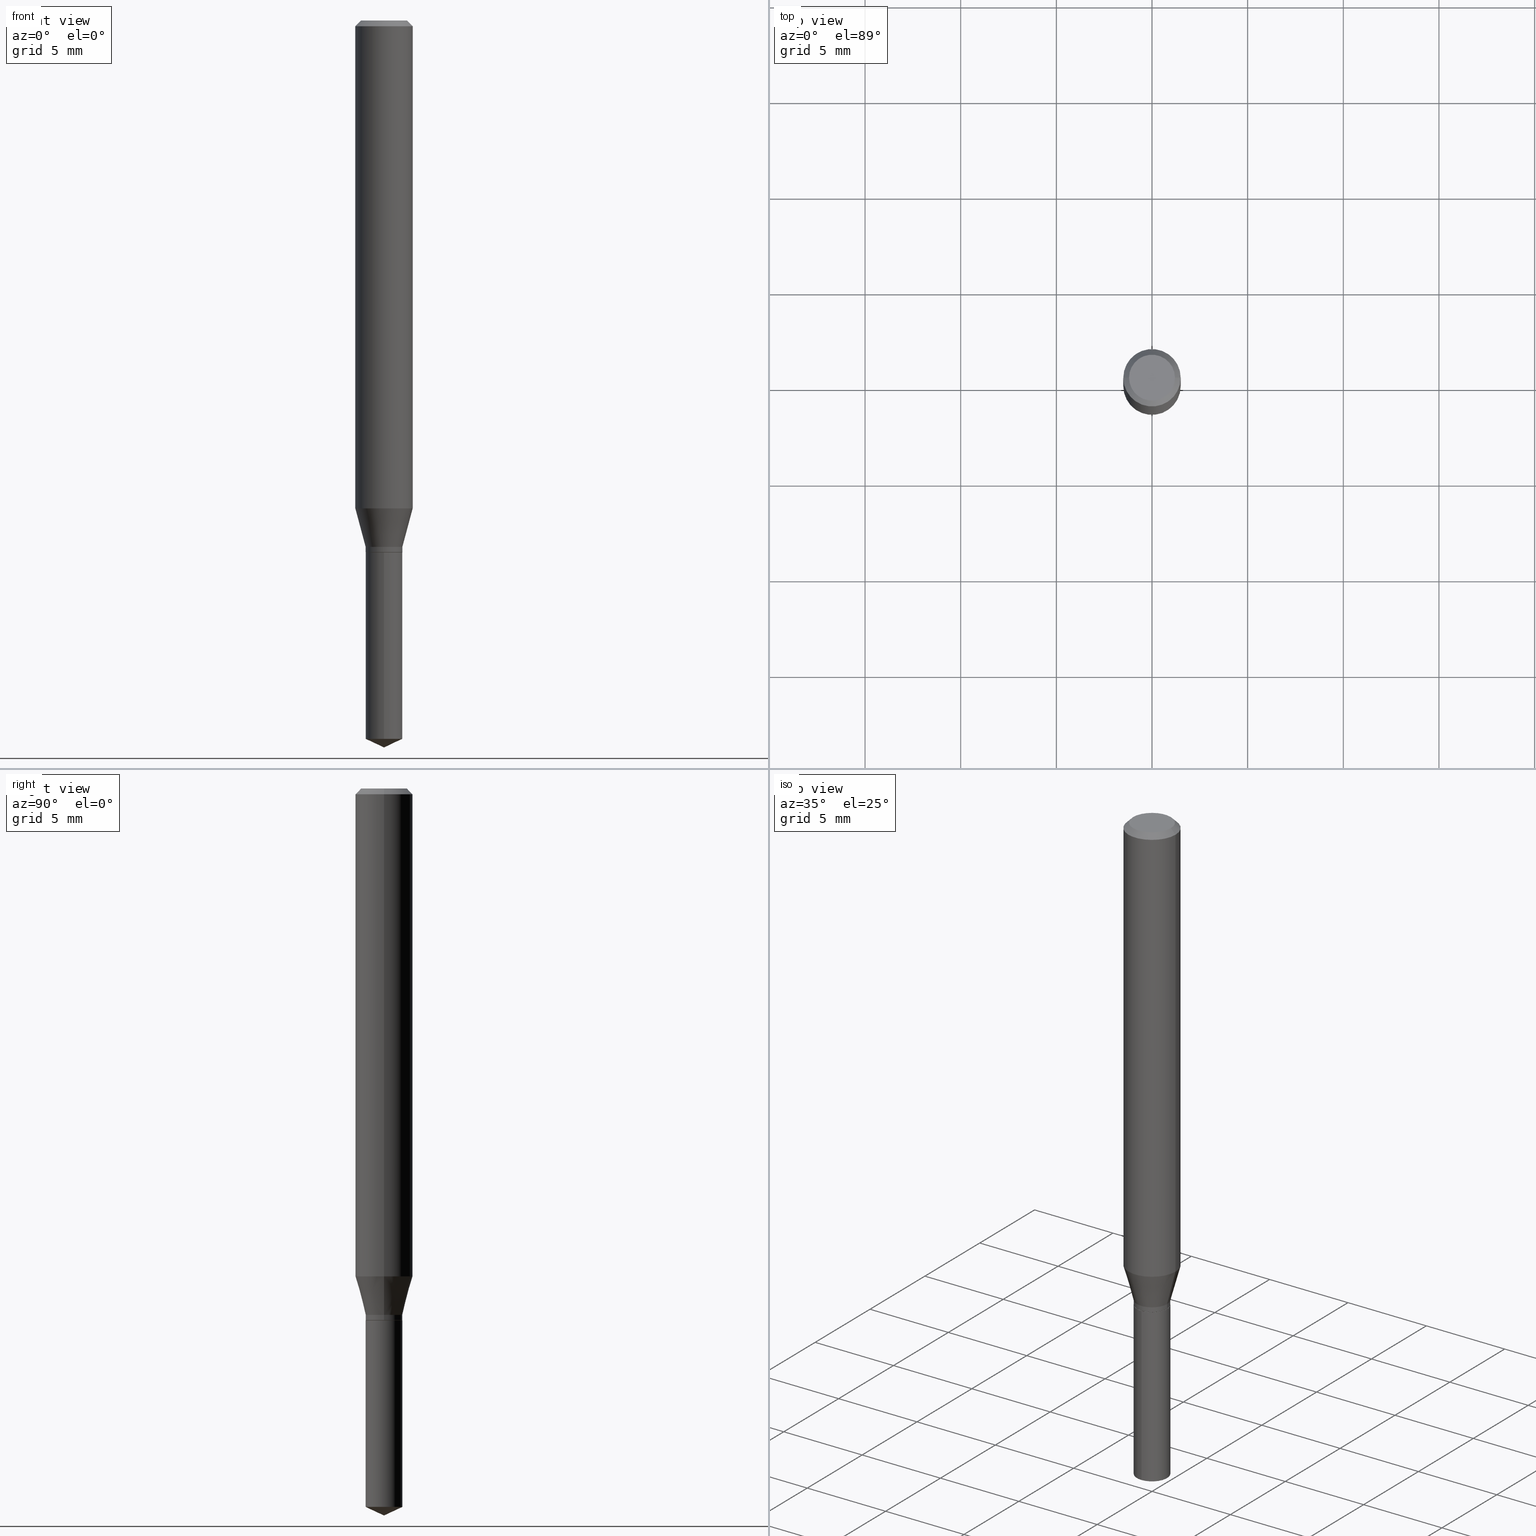
[diagram: canonical four-view strip — front | top / right | iso, engineering-drawing reading convention]
A machine part, canonical four-view strip (front | top / right | iso — engineering-drawing reading convention). The complete STEP part file that produces these views, byte-faithful:
ISO-10303-21;
HEADER;
FILE_DESCRIPTION (( 'STEP AP203' ),
    '1' );
FILE_NAME ('07935.STEP',
    '2024-04-24T06:37:50',
    ( '' ),
    ( '' ),
    'SwSTEP 2.0',
    'SolidWorks 2023',
    '' );
FILE_SCHEMA (( 'CONFIG_CONTROL_DESIGN' ));
ENDSEC;

DATA;
#1 =( GEOMETRIC_REPRESENTATION_CONTEXT ( 3 ) GLOBAL_UNCERTAINTY_ASSIGNED_CONTEXT ( ( #140 ) ) GLOBAL_UNIT_ASSIGNED_CONTEXT ( ( #318, #479, #279 ) ) REPRESENTATION_CONTEXT ( 'NONE', 'WORKASPACE' ) );
#2 = COORDINATED_UNIVERSAL_TIME_OFFSET ( 5, 0, .BEHIND. ) ;
#3 = CARTESIAN_POINT ( 'NONE',  ( -2.639559892165140833E-16, -0.03780000000000381666, -1.094499999999999806 ) ) ;
#4 = ORIENTED_EDGE ( 'NONE', *, *, #115, .F. ) ;
#5 = PERSON_AND_ORGANIZATION ( #147, #65 ) ;
#6 = CARTESIAN_POINT ( 'NONE',  ( 2.676565608369631794E-29, -3.821426325363822773E-15, -1.094499999999999806 ) ) ;
#7 = LINE ( 'NONE', #291, #465 ) ;
#8 = ORIENTED_EDGE ( 'NONE', *, *, #96, .T. ) ;
#9 = ADVANCED_FACE ( 'NONE', ( #446 ), #247, .T. ) ;
#10 = DIRECTION ( 'NONE',  ( -2.445458899330790108E-29, 3.491495526022433205E-15, 1.000000000000000000 ) ) ;
#11 = CONICAL_SURFACE ( 'NONE', #212, 84.42940631927459094, 1.134464013796317117 ) ;
#12 = DIRECTION ( 'NONE',  ( -6.982962677686265922E-15, -1.000000000000000000, 0.000000000000000000 ) ) ;
#13 = CONICAL_SURFACE ( 'NONE', #95, 0.03729999999999999982, 0.7853981633974141952 ) ;
#14 = DIRECTION ( 'NONE',  ( 0.7071067811865453523, -7.319954787623248157E-15, -0.7071067811865496822 ) ) ;
#15 = CALENDAR_DATE ( 2024, 24, 4 ) ;
#16 = DIRECTION ( 'NONE',  ( 1.000000000000000000, -6.982962677686270655E-15, 0.000000000000000000 ) ) ;
#17 = PLANE ( 'NONE',  #70 ) ;
#18 = ORIENTED_EDGE ( 'NONE', *, *, #386, .F. ) ;
#19 = APPROVAL ( #188, 'UNSPECIFIED' ) ;
#20 = PERSON_AND_ORGANIZATION_ROLE ( 'design_supplier' ) ;
#21 = DIRECTION ( 'NONE',  ( 2.445458899330789267E-29, -3.491495526022433599E-15, -1.000000000000000000 ) ) ;
#22 = FACE_OUTER_BOUND ( 'NONE', #271, .T. ) ;
#23 = CIRCLE ( 'NONE', #127, 0.05904999999999999832 ) ;
#24 = AXIS2_PLACEMENT_3D ( 'NONE', #266, #10, #83 ) ;
#25 = ORIENTED_EDGE ( 'NONE', *, *, #473, .T. ) ;
#26 = EDGE_LOOP ( 'NONE', ( #248, #136, #359, #379 ) ) ;
#27 = PRODUCT_RELATED_PRODUCT_CATEGORY ( 'detail', '', ( #249 ) ) ;
#28 = LENGTH_MEASURE_WITH_UNIT ( LENGTH_MEASURE( 0.02539999999999999897 ), #432 );
#29 = CYLINDRICAL_SURFACE ( 'NONE', #275, 0.05905000000000006077 ) ;
#30 = CC_DESIGN_APPROVAL ( #365, ( #459 ) ) ;
#31 = EDGE_LOOP ( 'NONE', ( #348, #101, #270, #112 ) ) ;
#32 = ORIENTED_EDGE ( 'NONE', *, *, #439, .T. ) ;
#33 = ORIENTED_EDGE ( 'NONE', *, *, #41, .T. ) ;
#34 = EDGE_CURVE ( 'NONE', #182, #287, #217, .T. ) ;
#35 = VECTOR ( 'NONE', #261, 39.37007874015748143 ) ;
#36 = VECTOR ( 'NONE', #72, 39.37007874015748854 ) ;
#37 = CARTESIAN_POINT ( 'NONE',  ( 0.000000000000000000, 0.000000000000000000, 0.000000000000000000 ) ) ;
#38 = CONICAL_SURFACE ( 'NONE', #173, 0.03729999999999999982, 0.7853981633974141952 ) ;
#39 = CARTESIAN_POINT ( 'NONE',  ( 0.000000000000000000, 0.000000000000000000, 0.000000000000000000 ) ) ;
#40 = CYLINDRICAL_SURFACE ( 'NONE', #103, 0.03780000000000000027 ) ;
#41 = EDGE_CURVE ( 'NONE', #340, #313, #207, .T. ) ;
#42 = VERTEX_POINT ( 'NONE', #135 ) ;
#43 = AXIS2_PLACEMENT_3D ( 'NONE', #86, #369, #47 ) ;
#44 = DIRECTION ( 'NONE',  ( -2.445458899330790108E-29, 3.491495526022433599E-15, 1.000000000000000000 ) ) ;
#45 = VECTOR ( 'NONE', #14, 39.37007874015748143 ) ;
#46 = DATE_TIME_ROLE ( 'creation_date' ) ;
#47 = DIRECTION ( 'NONE',  ( -6.982962677686265922E-15, -1.000000000000000000, 0.000000000000000000 ) ) ;
#48 = ORIENTED_EDGE ( 'NONE', *, *, #124, .T. ) ;
#49 = EDGE_CURVE ( 'NONE', #331, #179, #265, .T. ) ;
#50 = FACE_OUTER_BOUND ( 'NONE', #281, .T. ) ;
#51 = DIRECTION ( 'NONE',  ( 1.000000000000000000, -6.982962677686266711E-15, 0.000000000000000000 ) ) ;
#52 = EDGE_LOOP ( 'NONE', ( #18, #82, #33, #104 ) ) ;
#53 = DIRECTION ( 'NONE',  ( -2.445468806185136597E-29, 3.491481338843145583E-15, 1.000000000000000000 ) ) ;
#54 = CARTESIAN_POINT ( 'NONE',  ( -0.03780000000000000027, -3.532241431347330370E-15, -1.083199999999999941 ) ) ;
#55 = LINE ( 'NONE', #423, #158 ) ;
#56 = ADVANCED_FACE ( 'NONE', ( #244 ), #214, .T. ) ;
#57 = CARTESIAN_POINT ( 'NONE',  ( 3.658672935554494692E-29, -5.223595400746700193E-15, -1.496099999999999985 ) ) ;
#58 = DIRECTION ( 'NONE',  ( -6.982962677686265922E-15, -1.000000000000000000, 3.613555547174951347E-15 ) ) ;
#59 = LINE ( 'NONE', #151, #45 ) ;
#60 = CIRCLE ( 'NONE', #455, 0.05905000000000011628 ) ;
#61 = CC_DESIGN_PERSON_AND_ORGANIZATION_ASSIGNMENT ( #324, #282, ( #249 ) ) ;
#62 = ORIENTED_EDGE ( 'NONE', *, *, #41, .F. ) ;
#63 = ORIENTED_EDGE ( 'NONE', *, *, #467, .T. ) ;
#64 = EDGE_CURVE ( 'NONE', #287, #313, #487, .T. ) ;
#65 = ORGANIZATION ( 'UNSPECIFIED', 'UNSPECIFIED', '' ) ;
#66 = CARTESIAN_POINT ( 'NONE',  ( -0.03780000000000000027, -3.513387432117577343E-15, -1.083199999999999941 ) ) ;
#67 = ORIENTED_EDGE ( 'NONE', *, *, #473, .F. ) ;
#68 = APPLICATION_CONTEXT ( 'configuration controlled 3d designs of mechanical parts and assemblies' ) ;
#69 = FACE_OUTER_BOUND ( 'NONE', #100, .T. ) ;
#70 = AXIS2_PLACEMENT_3D ( 'NONE', #307, #463, #126 ) ;
#71 = AXIS2_PLACEMENT_3D ( 'NONE', #260, #84, #381 ) ;
#72 = DIRECTION ( 'NONE',  ( -0.2588190451025211836, 5.211531920934547886E-15, 0.9659258262890679791 ) ) ;
#73 = PERSON_AND_ORGANIZATION ( #147, #65 ) ;
#74 = CARTESIAN_POINT ( 'NONE',  ( 0.05904999999999999832, -4.535783407291118600E-16, -0.01181000000000007044 ) ) ;
#75 = DIRECTION ( 'NONE',  ( -6.982962677686267499E-15, -1.000000000000000000, 3.520397390770443220E-15 ) ) ;
#76 = DIRECTION ( 'NONE',  ( -2.445468806185136877E-29, 3.491481338843145188E-15, 1.000000000000000000 ) ) ;
#77 = CIRCLE ( 'NONE', #238, 0.03729999999999999982 ) ;
#78 = EDGE_CURVE ( 'NONE', #332, #400, #121, .T. ) ;
#79 = LINE ( 'NONE', #255, #200 ) ;
#80 = FACE_OUTER_BOUND ( 'NONE', #52, .T. ) ;
#81 = DIMENSIONAL_EXPONENTS ( 1.000000000000000000, 0.000000000000000000, 0.000000000000000000, 0.000000000000000000, 0.000000000000000000, 0.000000000000000000, 0.000000000000000000 ) ;
#82 = ORIENTED_EDGE ( 'NONE', *, *, #227, .F. ) ;
#83 = DIRECTION ( 'NONE',  ( -6.982962677686265922E-15, -1.000000000000000000, 3.613555547174951347E-15 ) ) ;
#84 = DIRECTION ( 'NONE',  ( -2.445468806185136597E-29, 3.491481338843145583E-15, 1.000000000000000000 ) ) ;
#85 = CARTESIAN_POINT ( 'NONE',  ( -0.04724000000000000421, 3.504923541997677355E-16, -3.380025165670481712E-19 ) ) ;
#86 = CARTESIAN_POINT ( 'NONE',  ( 3.615557193509842490E-29, -5.162068328951341351E-15, -1.478473570521741109 ) ) ;
#87 = EDGE_LOOP ( 'NONE', ( #485, #150, #464, #123 ) ) ;
#88 = PERSON_AND_ORGANIZATION ( #147, #65 ) ;
#89 = DIRECTION ( 'NONE',  ( 1.000000000000000000, -6.982962677686270655E-15, 0.000000000000000000 ) ) ;
#90 = LOCAL_TIME ( 2, 37, 50.00000000000000000, #367 ) ;
#91 = CARTESIAN_POINT ( 'NONE',  ( 2.685851541173539625E-16, 0.03779999999999483773, -1.478473570521741109 ) ) ;
#92 = PERSON_AND_ORGANIZATION ( #147, #65 ) ;
#93 = CARTESIAN_POINT ( 'NONE',  ( 0.03729999999999999982, -4.081890833241520572E-15, -1.094499999999999806 ) ) ;
#94 = ORIENTED_EDGE ( 'NONE', *, *, #443, .T. ) ;
#95 = AXIS2_PLACEMENT_3D ( 'NONE', #299, #377, #16 ) ;
#96 = EDGE_CURVE ( 'NONE', #204, #182, #167, .T. ) ;
#97 = CIRCLE ( 'NONE', #43, 0.03780000000000000027 ) ;
#98 = AXIS2_PLACEMENT_3D ( 'NONE', #116, #253, #404 ) ;
#99 = ORIENTED_EDGE ( 'NONE', *, *, #139, .T. ) ;
#100 = EDGE_LOOP ( 'NONE', ( #205, #114, #99, #257 ) ) ;
#101 = ORIENTED_EDGE ( 'NONE', *, *, #373, .T. ) ;
#102 = CC_DESIGN_DATE_AND_TIME_ASSIGNMENT ( #222, #46, ( #459 ) ) ;
#103 = AXIS2_PLACEMENT_3D ( 'NONE', #327, #451, #152 ) ;
#104 = ORIENTED_EDGE ( 'NONE', *, *, #133, .T. ) ;
#105 = CIRCLE ( 'NONE', #454, 0.03780000000000000027 ) ;
#106 = DIRECTION ( 'NONE',  ( 1.000000000000000000, -6.982962677686271444E-15, 0.000000000000000000 ) ) ;
#107 = APPROVAL_STATUS ( 'not_yet_approved' ) ;
#108 = CC_DESIGN_PERSON_AND_ORGANIZATION_ASSIGNMENT ( #389, #20, ( #428 ) ) ;
#109 = APPROVAL_STATUS ( 'not_yet_approved' ) ;
#110 = CONICAL_SURFACE ( 'NONE', #236, 0.03780000000000000027, 0.2617993877991499074 ) ;
#111 = DIRECTION ( 'NONE',  ( 1.000000000000000000, -6.982962677686266711E-15, 0.000000000000000000 ) ) ;
#112 = ORIENTED_EDGE ( 'NONE', *, *, #216, .F. ) ;
#113 = FACE_OUTER_BOUND ( 'NONE', #353, .T. ) ;
#114 = ORIENTED_EDGE ( 'NONE', *, *, #115, .T. ) ;
#115 = EDGE_CURVE ( 'NONE', #182, #204, #172, .T. ) ;
#116 = CARTESIAN_POINT ( 'NONE',  ( 2.676565608369631794E-29, -3.821426325363822773E-15, -1.094499999999999806 ) ) ;
#117 = ORIENTED_EDGE ( 'NONE', *, *, #234, .T. ) ;
#118 = PLANE ( 'NONE',  #352 ) ;
#119 = VECTOR ( 'NONE', #130, 39.37007874015748143 ) ;
#120 = CARTESIAN_POINT ( 'NONE',  ( -2.639559892165140833E-16, -0.03780000000000381666, -1.094499999999999806 ) ) ;
#121 = LINE ( 'NONE', #3, #383 ) ;
#122 = LINE ( 'NONE', #460, #342 ) ;
#123 = ORIENTED_EDGE ( 'NONE', *, *, #284, .F. ) ;
#124 = EDGE_CURVE ( 'NONE', #263, #332, #97, .T. ) ;
#125 = DIRECTION ( 'NONE',  ( 0.7071067811865232589, -2.468850131082003836E-15, 0.7071067811865715536 ) ) ;
#126 = DIRECTION ( 'NONE',  ( -1.000000000000000000, 6.982962677686265922E-15, -4.876176775795935793E-29 ) ) ;
#127 = AXIS2_PLACEMENT_3D ( 'NONE', #378, #286, #51 ) ;
#128 = AXIS2_PLACEMENT_3D ( 'NONE', #341, #162, #304 ) ;
#129 = CARTESIAN_POINT ( 'NONE',  ( -0.03729999999999999982, -3.553744657751194204E-15, -1.094499999999999806 ) ) ;
#130 = DIRECTION ( 'NONE',  ( -2.445468806185136877E-29, 3.491481338843145188E-15, 1.000000000000000000 ) ) ;
#131 = VERTEX_POINT ( 'NONE', #149 ) ;
#132 = ADVANCED_FACE ( 'NONE', ( #80 ), #156, .T. ) ;
#133 = EDGE_CURVE ( 'NONE', #313, #302, #23, .T. ) ;
#134 = PRODUCT_DEFINITION_SHAPE ( 'NONE', 'NONE',  #459 ) ;
#135 = CARTESIAN_POINT ( 'NONE',  ( 0.04724000000000000421, -3.852183633974369345E-16, -3.380025165621689721E-19 ) ) ;
#136 = ORIENTED_EDGE ( 'NONE', *, *, #431, .T. ) ;
#137 = DATE_TIME_ROLE ( 'classification_date' ) ;
#138 = ORIENTED_EDGE ( 'NONE', *, *, #354, .F. ) ;
#139 = EDGE_CURVE ( 'NONE', #204, #283, #7, .T. ) ;
#140 = UNCERTAINTY_MEASURE_WITH_UNIT (LENGTH_MEASURE( 1.000000000000000082E-05 ), #318, 'distance_accuracy_value', 'NONE');
#141 = APPROVAL_ROLE ( '' ) ;
#142 = DIRECTION ( 'NONE',  ( -0.7071067811865453523, 2.468850131082234184E-15, -0.7071067811865496822 ) ) ;
#143 = CLOSED_SHELL ( 'NONE', ( #406, #178, #480, #347, #9, #161, #326, #181, #132, #242, #264, #333 ) ) ;
#144 = MANIFOLD_SOLID_BREP ( 'Body-Move/Copy2[2]', #143 ) ;
#145 = LOCAL_TIME ( 2, 37, 50.00000000000000000, #215 ) ;
#146 = DIRECTION ( 'NONE',  ( 2.445468806185136597E-29, -3.491481338843145583E-15, -1.000000000000000000 ) ) ;
#147 = PERSON ( 'UNSPECIFIED', 'UNSPECIFIED', 'UNSPECIFIED', ('UNSPECIFIED'), ('UNSPECIFIED'), ('UNSPECIFIED') ) ;
#148 = CARTESIAN_POINT ( 'NONE',  ( 2.454991266908324597E-29, -3.505076889042267956E-15, -1.003893920339161028 ) ) ;
#149 = CARTESIAN_POINT ( 'NONE',  ( 3.658651059288794515E-29, -5.223626456482161457E-15, -1.496099999999999985 ) ) ;
#150 = ORIENTED_EDGE ( 'NONE', *, *, #64, .T. ) ;
#151 = CARTESIAN_POINT ( 'NONE',  ( 0.05904999999999999832, -4.463468013801466955E-16, -0.01181000000000007044 ) ) ;
#152 = DIRECTION ( 'NONE',  ( 1.000000000000000000, -6.982962677686265922E-15, 4.876176775795935793E-29 ) ) ;
#153 = EDGE_LOOP ( 'NONE', ( #382, #32 ) ) ;
#154 = AXIS2_PLACEMENT_3D ( 'NONE', #390, #235, #338 ) ;
#155 = FACE_OUTER_BOUND ( 'NONE', #447, .T. ) ;
#156 = CONICAL_SURFACE ( 'NONE', #199, 0.05904999999999999832, 0.7853981633974452814 ) ;
#157 = CARTESIAN_POINT ( 'NONE',  ( 2.888098660104663766E-31, -4.123439461173779647E-17, -0.01181000000000007044 ) ) ;
#158 = VECTOR ( 'NONE', #457, 39.37007874015748143 ) ;
#159 = ORIENTED_EDGE ( 'NONE', *, *, #216, .T. ) ;
#160 = CARTESIAN_POINT ( 'NONE',  ( -2.639559892165046662E-16, -0.03780000000000515586, -1.478473570521741109 ) ) ;
#161 = ADVANCED_FACE ( 'NONE', ( #191 ), #40, .T. ) ;
#162 = DIRECTION ( 'NONE',  ( -2.438088387897960049E-29, 3.491481338843145188E-15, 1.000000000000000000 ) ) ;
#163 = DIRECTION ( 'NONE',  ( -2.445458899330790108E-29, 3.491495526022433205E-15, 1.000000000000000000 ) ) ;
#164 = DIRECTION ( 'NONE',  ( -2.445468806185136597E-29, 3.491481338843145583E-15, 1.000000000000000000 ) ) ;
#165 = LINE ( 'NONE', #223, #35 ) ;
#166 = DIRECTION ( 'NONE',  ( -2.445458899330790108E-29, 3.491495526022433205E-15, 1.000000000000000000 ) ) ;
#167 = CIRCLE ( 'NONE', #183, 0.03780000000000000027 ) ;
#168 = VECTOR ( 'NONE', #329, 39.37007874015748854 ) ;
#169 = EDGE_CURVE ( 'NONE', #332, #263, #308, .T. ) ;
#170 = DESIGN_CONTEXT ( 'detailed design', #68, 'design' ) ;
#171 = ORIENTED_EDGE ( 'NONE', *, *, #169, .F. ) ;
#172 = CIRCLE ( 'NONE', #221, 0.03780000000000000027 ) ;
#173 = AXIS2_PLACEMENT_3D ( 'NONE', #420, #228, #89 ) ;
#174 = SHAPE_DEFINITION_REPRESENTATION ( #134, #350 ) ;
#175 = ORIENTED_EDGE ( 'NONE', *, *, #139, .F. ) ;
#176 = ORIENTED_EDGE ( 'NONE', *, *, #294, .T. ) ;
#177 = CIRCLE ( 'NONE', #154, 0.04724000000000000421 ) ;
#178 = ADVANCED_FACE ( 'NONE', ( #375 ), #298, .T. ) ;
#179 = VERTEX_POINT ( 'NONE', #189 ) ;
#180 = DIRECTION ( 'NONE',  ( -6.982962677686265922E-15, -1.000000000000000000, 3.613555547174951347E-15 ) ) ;
#181 = ADVANCED_FACE ( 'NONE', ( #458 ), #336, .T. ) ;
#182 = VERTEX_POINT ( 'NONE', #54 ) ;
#183 = AXIS2_PLACEMENT_3D ( 'NONE', #262, #421, #254 ) ;
#184 = DIRECTION ( 'NONE',  ( -2.445468806185136877E-29, 3.491481338843145188E-15, 1.000000000000000000 ) ) ;
#185 = CARTESIAN_POINT ( 'NONE',  ( 0.03780000000000000027, -4.045928575451436021E-15, -1.083199999999999941 ) ) ;
#186 = ORIENTED_EDGE ( 'NONE', *, *, #373, .F. ) ;
#187 = APPROVAL_PERSON_ORGANIZATION ( #5, #19, #334 ) ;
#188 = APPROVAL_STATUS ( 'not_yet_approved' ) ;
#189 = CARTESIAN_POINT ( 'NONE',  ( -0.03780000000000000027, -3.532241431347330370E-15, -1.093999999999999861 ) ) ;
#190 = DIRECTION ( 'NONE',  ( -2.445468806185136597E-29, 3.491481338843145583E-15, 1.000000000000000000 ) ) ;
#191 = FACE_OUTER_BOUND ( 'NONE', #425, .T. ) ;
#192 = CC_DESIGN_PERSON_AND_ORGANIZATION_ASSIGNMENT ( #92, #435, ( #358 ) ) ;
#193 = CARTESIAN_POINT ( 'NONE',  ( 2.676565608369631794E-29, -3.821426325363822773E-15, -1.094499999999999806 ) ) ;
#194 = DIRECTION ( 'NONE',  ( 0.2588190451025211836, 1.565188264969622559E-15, 0.9659258262890679791 ) ) ;
#195 = CIRCLE ( 'NONE', #385, 0.05904999999999999832 ) ;
#196 = DIRECTION ( 'NONE',  ( -2.445468806185136597E-29, 3.491481338843145583E-15, 1.000000000000000000 ) ) ;
#197 = DIRECTION ( 'NONE',  ( 6.439704144417032720E-15, 0.9063077870366527122, 0.4226182617406937236 ) ) ;
#198 = ADVANCED_FACE ( 'NONE', ( #113 ), #11, .T. ) ;
#199 = AXIS2_PLACEMENT_3D ( 'NONE', #489, #229, #296 ) ;
#200 = VECTOR ( 'NONE', #269, 39.37007874015748143 ) ;
#201 = CC_DESIGN_APPROVAL ( #203, ( #358 ) ) ;
#202 = ORIENTED_EDGE ( 'NONE', *, *, #303, .F. ) ;
#203 = APPROVAL ( #107, 'UNSPECIFIED' ) ;
#204 = VERTEX_POINT ( 'NONE', #185 ) ;
#205 = ORIENTED_EDGE ( 'NONE', *, *, #34, .F. ) ;
#206 = ORIENTED_EDGE ( 'NONE', *, *, #49, .F. ) ;
#207 = LINE ( 'NONE', #360, #237 ) ;
#208 = EDGE_CURVE ( 'NONE', #349, #179, #220, .T. ) ;
#209 = DATE_AND_TIME ( #403, #90 ) ;
#210 = CARTESIAN_POINT ( 'NONE',  ( 2.648931810859739974E-29, -3.781972586234895215E-15, -1.083199999999999941 ) ) ;
#211 = DIRECTION ( 'NONE',  ( -2.445458899330790108E-29, 3.491495526022433205E-15, 1.000000000000000000 ) ) ;
#212 = AXIS2_PLACEMENT_3D ( 'NONE', #251, #411, #75 ) ;
#213 = CIRCLE ( 'NONE', #273, 0.03729999999999999982 ) ;
#214 = CYLINDRICAL_SURFACE ( 'NONE', #297, 0.03780000000000000027 ) ;
#215 = COORDINATED_UNIVERSAL_TIME_OFFSET ( 5, 0, .BEHIND. ) ;
#216 = EDGE_CURVE ( 'NONE', #331, #204, #471, .T. ) ;
#217 = LINE ( 'NONE', #66, #36 ) ;
#218 = ORIENTED_EDGE ( 'NONE', *, *, #354, .T. ) ;
#219 = PERSON_AND_ORGANIZATION ( #147, #65 ) ;
#220 = LINE ( 'NONE', #372, #168 ) ;
#221 = AXIS2_PLACEMENT_3D ( 'NONE', #424, #417, #344 ) ;
#222 = DATE_AND_TIME ( #413, #474 ) ;
#223 = CARTESIAN_POINT ( 'NONE',  ( -0.03780000000000000027, 2.685851541173178722E-16, -1.859357464116354112E-30 ) ) ;
#224 = CARTESIAN_POINT ( 'NONE',  ( -0.05905000000000006077, 4.195754854663395916E-16, -2.904631170795524694E-30 ) ) ;
#225 = ORIENTED_EDGE ( 'NONE', *, *, #34, .T. ) ;
#226 = EDGE_LOOP ( 'NONE', ( #67, #94, #412 ) ) ;
#227 = EDGE_CURVE ( 'NONE', #340, #42, #321, .T. ) ;
#228 = DIRECTION ( 'NONE',  ( -2.445468806185136597E-29, 3.491481338843145583E-15, 1.000000000000000000 ) ) ;
#229 = DIRECTION ( 'NONE',  ( 2.445468806185136597E-29, -3.491481338843145583E-15, -1.000000000000000000 ) ) ;
#230 = ORIENTED_EDGE ( 'NONE', *, *, #443, .F. ) ;
#231 = CARTESIAN_POINT ( 'NONE',  ( 2.648931810859739974E-29, -3.781972586234895215E-15, -1.083199999999999941 ) ) ;
#232 = CARTESIAN_POINT ( 'NONE',  ( 2.888098660104663766E-31, -4.123439461173779647E-17, -0.01181000000000007044 ) ) ;
#233 = DIRECTION ( 'NONE',  ( -6.982962677686267499E-15, -1.000000000000000000, 3.520397390770443220E-15 ) ) ;
#234 = EDGE_CURVE ( 'NONE', #302, #313, #195, .T. ) ;
#235 = DIRECTION ( 'NONE',  ( -2.445468806185136597E-29, 3.491481338843145583E-15, 1.000000000000000000 ) ) ;
#236 = AXIS2_PLACEMENT_3D ( 'NONE', #210, #322, #245 ) ;
#237 = VECTOR ( 'NONE', #142, 39.37007874015748143 ) ;
#238 = AXIS2_PLACEMENT_3D ( 'NONE', #453, #190, #416 ) ;
#239 = DIRECTION ( 'NONE',  ( 1.000000000000000000, -6.982962677686266711E-15, 4.876185090822587894E-29 ) ) ;
#240 = AXIS2_PLACEMENT_3D ( 'NONE', #231, #196, #430 ) ;
#241 = DIRECTION ( 'NONE',  ( 1.000000000000000000, -6.982962677686265922E-15, 4.876176775795935793E-29 ) ) ;
#242 = ADVANCED_FACE ( 'NONE', ( #388 ), #17, .F. ) ;
#243 = CARTESIAN_POINT ( 'NONE',  ( -0.05904999999999999832, -1.353580156360662560E-15, -0.01181000000000007044 ) ) ;
#244 = FACE_OUTER_BOUND ( 'NONE', #26, .T. ) ;
#245 = DIRECTION ( 'NONE',  ( 1.000000000000000000, -6.982962677686271444E-15, 0.000000000000000000 ) ) ;
#246 = ORIENTED_EDGE ( 'NONE', *, *, #208, .T. ) ;
#247 = CYLINDRICAL_SURFACE ( 'NONE', #426, 0.03780000000000000027 ) ;
#248 = ORIENTED_EDGE ( 'NONE', *, *, #169, .T. ) ;
#249 = PRODUCT ( '07935', '07935', '', ( #415 ) ) ;
#250 = APPROVAL_DATE_TIME ( #449, #365 ) ;
#251 = CARTESIAN_POINT ( 'NONE',  ( -9.261924752013118283E-28, 1.322368428517963298E-13, 37.87397874015748300 ) ) ;
#252 = APPLICATION_PROTOCOL_DEFINITION ( 'international standard', 'config_control_design', 1994, #320 ) ;
#253 = DIRECTION ( 'NONE',  ( -2.445458899330790108E-29, 3.491495526022433205E-15, 1.000000000000000000 ) ) ;
#254 = DIRECTION ( 'NONE',  ( 1.000000000000000000, -6.982962677686271444E-15, 0.000000000000000000 ) ) ;
#255 = CARTESIAN_POINT ( 'NONE',  ( 2.685851541173445948E-16, 0.03779999999999617694, -1.094500000000000028 ) ) ;
#256 = EDGE_CURVE ( 'NONE', #400, #478, #440, .T. ) ;
#257 = ORIENTED_EDGE ( 'NONE', *, *, #294, .F. ) ;
#258 = LOCAL_TIME ( 2, 37, 50.00000000000000000, #445 ) ;
#259 = FACE_OUTER_BOUND ( 'NONE', #461, .T. ) ;
#260 = CARTESIAN_POINT ( 'NONE',  ( 0.000000000000000000, 0.000000000000000000, 0.000000000000000000 ) ) ;
#261 = DIRECTION ( 'NONE',  ( -2.445468806185136877E-29, 3.491481338843145188E-15, 1.000000000000000000 ) ) ;
#262 = CARTESIAN_POINT ( 'NONE',  ( 2.648931810859739974E-29, -3.781972586234895215E-15, -1.083199999999999941 ) ) ;
#263 = VERTEX_POINT ( 'NONE', #91 ) ;
#264 = ADVANCED_FACE ( 'NONE', ( #22 ), #384, .F. ) ;
#265 = CIRCLE ( 'NONE', #481, 0.03780000000000000027 ) ;
#266 = CARTESIAN_POINT ( 'NONE',  ( 2.676565608369631794E-29, -3.821426325363822773E-15, -1.094499999999999806 ) ) ;
#267 = CARTESIAN_POINT ( 'NONE',  ( 2.676565608369631794E-29, -3.821426325363822773E-15, -1.094499999999999806 ) ) ;
#268 = EDGE_LOOP ( 'NONE', ( #339, #477, #117, #62 ) ) ;
#269 = DIRECTION ( 'NONE',  ( -2.445458899330790108E-29, 3.491495526022433599E-15, 1.000000000000000000 ) ) ;
#270 = ORIENTED_EDGE ( 'NONE', *, *, #96, .F. ) ;
#271 = EDGE_LOOP ( 'NONE', ( #409, #470 ) ) ;
#272 = CARTESIAN_POINT ( 'NONE',  ( 8.265746106709734507E-48, -1.180129479067563789E-33, -3.380025165646692144E-19 ) ) ;
#273 = AXIS2_PLACEMENT_3D ( 'NONE', #193, #301, #306 ) ;
#274 = CC_DESIGN_PERSON_AND_ORGANIZATION_ASSIGNMENT ( #371, #328, ( #459 ) ) ;
#275 = AXIS2_PLACEMENT_3D ( 'NONE', #475, #401, #314 ) ;
#276 = EDGE_LOOP ( 'NONE', ( #288, #63, #218, #202 ) ) ;
#277 = DIRECTION ( 'NONE',  ( -2.445468806185136597E-29, 3.491481338843145583E-15, 1.000000000000000000 ) ) ;
#278 = AXIS2_PLACEMENT_3D ( 'NONE', #267, #166, #58 ) ;
#279 =( NAMED_UNIT ( * ) SI_UNIT ( $, .STERADIAN. ) SOLID_ANGLE_UNIT ( ) );
#280 = CARTESIAN_POINT ( 'NONE',  ( 2.675342873966538993E-29, -3.819680584694400481E-15, -1.093999999999999861 ) ) ;
#281 = EDGE_LOOP ( 'NONE', ( #366, #48, #441, #362 ) ) ;
#282 = PERSON_AND_ORGANIZATION_ROLE ( 'design_owner' ) ;
#283 = VERTEX_POINT ( 'NONE', #476 ) ;
#284 = EDGE_CURVE ( 'NONE', #283, #302, #398, .T. ) ;
#285 = CARTESIAN_POINT ( 'NONE',  ( -0.05905000000000011628, -3.085501403575928068E-15, -1.003893920339161028 ) ) ;
#286 = DIRECTION ( 'NONE',  ( -2.445468806185136597E-29, 3.491481338843145583E-15, 1.000000000000000000 ) ) ;
#287 = VERTEX_POINT ( 'NONE', #285 ) ;
#288 = ORIENTED_EDGE ( 'NONE', *, *, #208, .F. ) ;
#289 = APPLICATION_PROTOCOL_DEFINITION ( 'international standard', 'config_control_design', 1994, #68 ) ;
#290 = DIRECTION ( 'NONE',  ( -2.445468806185136597E-29, 3.491481338843145583E-15, 1.000000000000000000 ) ) ;
#291 = CARTESIAN_POINT ( 'NONE',  ( 0.03780000000000000027, -4.045928575451436021E-15, -1.083199999999999941 ) ) ;
#292 = MANIFOLD_SOLID_BREP ( 'Body-Move/Copy2[1]', #316 ) ;
#293 = DIRECTION ( 'NONE',  ( 1.000000000000000000, 0.000000000000000000, 0.000000000000000000 ) ) ;
#294 = EDGE_CURVE ( 'NONE', #287, #283, #60, .T. ) ;
#295 = CARTESIAN_POINT ( 'NONE',  ( -9.261924752013118283E-28, 1.322368428517963298E-13, 37.87397874015748300 ) ) ;
#296 = DIRECTION ( 'NONE',  ( -1.000000000000000000, 6.982962677686266711E-15, 0.000000000000000000 ) ) ;
#297 = AXIS2_PLACEMENT_3D ( 'NONE', #405, #211, #180 ) ;
#298 = CONICAL_SURFACE ( 'NONE', #394, 0.05904999999999999832, 0.7853981633974452814 ) ;
#299 = CARTESIAN_POINT ( 'NONE',  ( 2.676565608369631794E-29, -3.821426325363822773E-15, -1.094499999999999806 ) ) ;
#300 = DIRECTION ( 'NONE',  ( -1.000000000000000000, 6.982962677686266711E-15, 0.000000000000000000 ) ) ;
#301 = DIRECTION ( 'NONE',  ( -2.445468806185136597E-29, 3.491481338843145583E-15, 1.000000000000000000 ) ) ;
#302 = VERTEX_POINT ( 'NONE', #74 ) ;
#303 = EDGE_CURVE ( 'NONE', #179, #331, #105, .T. ) ;
#304 = DIRECTION ( 'NONE',  ( 1.000000000000000000, -6.982962677686265922E-15, 4.876176775795935793E-29 ) ) ;
#305 = APPROVAL_DATE_TIME ( #419, #19 ) ;
#306 = DIRECTION ( 'NONE',  ( 1.000000000000000000, -6.982962677686270655E-15, 0.000000000000000000 ) ) ;
#307 = CARTESIAN_POINT ( 'NONE',  ( 4.132873053354867254E-48, -5.900647395337818946E-34, -1.690012582823346072E-19 ) ) ;
#308 = CIRCLE ( 'NONE', #374, 0.03780000000000000027 ) ;
#309 = SECURITY_CLASSIFICATION_LEVEL ( 'unclassified' ) ;
#310 = FACE_OUTER_BOUND ( 'NONE', #87, .T. ) ;
#311 = CIRCLE ( 'NONE', #98, 0.03780000000000000027 ) ;
#312 = ORIENTED_EDGE ( 'NONE', *, *, #256, .T. ) ;
#313 = VERTEX_POINT ( 'NONE', #243 ) ;
#314 = DIRECTION ( 'NONE',  ( 1.000000000000000000, -6.982962677686266711E-15, 4.876176775795935793E-29 ) ) ;
#315 = EDGE_CURVE ( 'NONE', #478, #400, #311, .T. ) ;
#316 = CLOSED_SHELL ( 'NONE', ( #56, #198, #422, #355, #399 ) ) ;
#317 = AXIS2_PLACEMENT_3D ( 'NONE', #272, #437, #239 ) ;
#318 =( CONVERSION_BASED_UNIT ( 'INCH', #28 ) LENGTH_UNIT ( ) NAMED_UNIT ( #81 ) );
#319 = CC_DESIGN_DATE_AND_TIME_ASSIGNMENT ( #209, #137, ( #358 ) ) ;
#320 = APPLICATION_CONTEXT ( 'configuration controlled 3d designs of mechanical parts and assemblies' ) ;
#321 = CIRCLE ( 'NONE', #317, 0.04724000000000000421 ) ;
#322 = DIRECTION ( 'NONE',  ( -2.445468806185136597E-29, 3.491481338843145583E-15, 1.000000000000000000 ) ) ;
#323 = APPROVAL_ROLE ( '' ) ;
#324 = PERSON_AND_ORGANIZATION ( #147, #65 ) ;
#325 = DIRECTION ( 'NONE',  ( -2.445468806185136597E-29, 3.491481338843145583E-15, 1.000000000000000000 ) ) ;
#326 = ADVANCED_FACE ( 'NONE', ( #69 ), #110, .T. ) ;
#327 = CARTESIAN_POINT ( 'NONE',  ( 0.000000000000000000, 0.000000000000000000, 0.000000000000000000 ) ) ;
#328 = PERSON_AND_ORGANIZATION_ROLE ( 'creator' ) ;
#329 = DIRECTION ( 'NONE',  ( -0.7071067811865232589, 7.493145998870265808E-15, 0.7071067811865715536 ) ) ;
#330 = LOCAL_TIME ( 2, 37, 50.00000000000000000, #376 ) ;
#331 = VERTEX_POINT ( 'NONE', #468 ) ;
#332 = VERTEX_POINT ( 'NONE', #160 ) ;
#333 = ADVANCED_FACE ( 'NONE', ( #392 ), #38, .T. ) ;
#334 = APPROVAL_ROLE ( '' ) ;
#335 = CYLINDRICAL_SURFACE ( 'NONE', #24, 0.03780000000000000027 ) ;
#336 = CYLINDRICAL_SURFACE ( 'NONE', #71, 0.05905000000000006077 ) ;
#337 = ORIENTED_EDGE ( 'NONE', *, *, #64, .F. ) ;
#338 = DIRECTION ( 'NONE',  ( 1.000000000000000000, -6.982962677686266711E-15, 4.876185090822587894E-29 ) ) ;
#339 = ORIENTED_EDGE ( 'NONE', *, *, #439, .F. ) ;
#340 = VERTEX_POINT ( 'NONE', #85 ) ;
#341 = CARTESIAN_POINT ( 'NONE',  ( 2.676565608369631794E-29, -3.821426325363822773E-15, -1.094499999999999806 ) ) ;
#342 = VECTOR ( 'NONE', #125, 39.37007874015748854 ) ;
#343 = FACE_OUTER_BOUND ( 'NONE', #226, .T. ) ;
#344 = DIRECTION ( 'NONE',  ( 1.000000000000000000, -6.982962677686271444E-15, 0.000000000000000000 ) ) ;
#345 = APPROVAL_PERSON_ORGANIZATION ( #219, #203, #323 ) ;
#346 = DIRECTION ( 'NONE',  ( 1.000000000000000000, -6.982962677686266711E-15, 0.000000000000000000 ) ) ;
#347 = ADVANCED_FACE ( 'NONE', ( #155 ), #466, .T. ) ;
#348 = ORIENTED_EDGE ( 'NONE', *, *, #49, .T. ) ;
#349 = VERTEX_POINT ( 'NONE', #129 ) ;
#350 = ADVANCED_BREP_SHAPE_REPRESENTATION ( '07935', ( #292, #144, #356 ), #1 ) ;
#351 = CARTESIAN_POINT ( 'NONE',  ( 2.685851541173540611E-16, 0.03779999999999617694, -1.094500000000000028 ) ) ;
#352 = AXIS2_PLACEMENT_3D ( 'NONE', #6, #21, #387 ) ;
#353 = EDGE_LOOP ( 'NONE', ( #230, #25, #171 ) ) ;
#354 = EDGE_CURVE ( 'NONE', #433, #331, #122, .T. ) ;
#355 = ADVANCED_FACE ( 'NONE', ( #50 ), #335, .T. ) ;
#356 = AXIS2_PLACEMENT_3D ( 'NONE', #37, #368, #293 ) ;
#357 = EDGE_LOOP ( 'NONE', ( #337, #176, #444, #407 ) ) ;
#358 = SECURITY_CLASSIFICATION ( '', '', #309 ) ;
#359 = ORIENTED_EDGE ( 'NONE', *, *, #256, .F. ) ;
#360 = CARTESIAN_POINT ( 'NONE',  ( -0.05904999999999999832, 3.711095515056362547E-16, -0.01181000000000007044 ) ) ;
#361 = APPROVAL_DATE_TIME ( #456, #203 ) ;
#362 = ORIENTED_EDGE ( 'NONE', *, *, #315, .F. ) ;
#363 = CONICAL_SURFACE ( 'NONE', #364, 84.42940631927459094, 1.134464013796317117 ) ;
#364 = AXIS2_PLACEMENT_3D ( 'NONE', #295, #163, #233 ) ;
#365 = APPROVAL ( #109, 'UNSPECIFIED' ) ;
#366 = ORIENTED_EDGE ( 'NONE', *, *, #431, .F. ) ;
#367 = COORDINATED_UNIVERSAL_TIME_OFFSET ( 5, 0, .BEHIND. ) ;
#368 = DIRECTION ( 'NONE',  ( 0.000000000000000000, 0.000000000000000000, 1.000000000000000000 ) ) ;
#369 = DIRECTION ( 'NONE',  ( -2.445458899330790108E-29, 3.491495526022433205E-15, 1.000000000000000000 ) ) ;
#370 = EDGE_LOOP ( 'NONE', ( #402, #246, #206, #138 ) ) ;
#371 = PERSON_AND_ORGANIZATION ( #147, #65 ) ;
#372 = CARTESIAN_POINT ( 'NONE',  ( -0.03729999999999999982, -3.556393884925305405E-15, -1.094499999999999806 ) ) ;
#373 = EDGE_CURVE ( 'NONE', #179, #182, #165, .T. ) ;
#374 = AXIS2_PLACEMENT_3D ( 'NONE', #452, #414, #12 ) ;
#375 = FACE_OUTER_BOUND ( 'NONE', #268, .T. ) ;
#376 = COORDINATED_UNIVERSAL_TIME_OFFSET ( 5, 0, .BEHIND. ) ;
#377 = DIRECTION ( 'NONE',  ( -2.445468806185136597E-29, 3.491481338843145583E-15, 1.000000000000000000 ) ) ;
#378 = CARTESIAN_POINT ( 'NONE',  ( 2.888098660104663766E-31, -4.123439461173779647E-17, -0.01181000000000007044 ) ) ;
#379 = ORIENTED_EDGE ( 'NONE', *, *, #78, .F. ) ;
#380 = CARTESIAN_POINT ( 'NONE',  ( 2.454991266908324597E-29, -3.505076889042267956E-15, -1.003893920339161028 ) ) ;
#381 = DIRECTION ( 'NONE',  ( 1.000000000000000000, -6.982962677686266711E-15, 4.876176775795935793E-29 ) ) ;
#382 = ORIENTED_EDGE ( 'NONE', *, *, #227, .T. ) ;
#383 = VECTOR ( 'NONE', #44, 39.37007874015748143 ) ;
#384 = PLANE ( 'NONE',  #128 ) ;
#385 = AXIS2_PLACEMENT_3D ( 'NONE', #232, #164, #397 ) ;
#386 = EDGE_CURVE ( 'NONE', #42, #302, #59, .T. ) ;
#387 = DIRECTION ( 'NONE',  ( 6.982962677686265922E-15, 1.000000000000000000, -3.491495526022433599E-15 ) ) ;
#388 = FACE_OUTER_BOUND ( 'NONE', #153, .T. ) ;
#389 = PERSON_AND_ORGANIZATION ( #147, #65 ) ;
#390 = CARTESIAN_POINT ( 'NONE',  ( 8.265746106709734507E-48, -1.180129479067563789E-33, -3.380025165646692144E-19 ) ) ;
#391 = CARTESIAN_POINT ( 'NONE',  ( 0.03780000000000000027, -2.639559892165408552E-16, 1.843194821250863794E-30 ) ) ;
#392 = FACE_OUTER_BOUND ( 'NONE', #276, .T. ) ;
#393 = EDGE_CURVE ( 'NONE', #433, #349, #77, .T. ) ;
#394 = AXIS2_PLACEMENT_3D ( 'NONE', #157, #146, #300 ) ;
#395 = CC_DESIGN_APPROVAL ( #19, ( #428 ) ) ;
#396 = ORIENTED_EDGE ( 'NONE', *, *, #315, .T. ) ;
#397 = DIRECTION ( 'NONE',  ( 1.000000000000000000, -6.982962677686266711E-15, 0.000000000000000000 ) ) ;
#398 = LINE ( 'NONE', #486, #434 ) ;
#399 = ADVANCED_FACE ( 'NONE', ( #259 ), #118, .F. ) ;
#400 = VERTEX_POINT ( 'NONE', #120 ) ;
#401 = DIRECTION ( 'NONE',  ( -2.445468806185136597E-29, 3.491481338843145583E-15, 1.000000000000000000 ) ) ;
#402 = ORIENTED_EDGE ( 'NONE', *, *, #393, .T. ) ;
#403 = CALENDAR_DATE ( 2024, 24, 4 ) ;
#404 = DIRECTION ( 'NONE',  ( -6.982962677686265922E-15, -1.000000000000000000, 3.613555547174951347E-15 ) ) ;
#405 = CARTESIAN_POINT ( 'NONE',  ( 2.676565608369631794E-29, -3.821426325363822773E-15, -1.094499999999999806 ) ) ;
#406 = ADVANCED_FACE ( 'NONE', ( #427 ), #13, .T. ) ;
#407 = ORIENTED_EDGE ( 'NONE', *, *, #133, .F. ) ;
#408 = VECTOR ( 'NONE', #197, 39.37007874015748854 ) ;
#409 = ORIENTED_EDGE ( 'NONE', *, *, #393, .F. ) ;
#410 = CC_DESIGN_PERSON_AND_ORGANIZATION_ASSIGNMENT ( #88, #469, ( #428 ) ) ;
#411 = DIRECTION ( 'NONE',  ( -2.445458899330790108E-29, 3.491495526022433205E-15, 1.000000000000000000 ) ) ;
#412 = ORIENTED_EDGE ( 'NONE', *, *, #124, .F. ) ;
#413 = CALENDAR_DATE ( 2024, 24, 4 ) ;
#414 = DIRECTION ( 'NONE',  ( -2.445458899330790108E-29, 3.491495526022433205E-15, 1.000000000000000000 ) ) ;
#415 = MECHANICAL_CONTEXT ( 'NONE', #320, 'mechanical' ) ;
#416 = DIRECTION ( 'NONE',  ( 1.000000000000000000, -6.982962677686270655E-15, 0.000000000000000000 ) ) ;
#417 = DIRECTION ( 'NONE',  ( -2.445468806185136597E-29, 3.491481338843145583E-15, 1.000000000000000000 ) ) ;
#418 = ORIENTED_EDGE ( 'NONE', *, *, #448, .F. ) ;
#419 = DATE_AND_TIME ( #429, #330 ) ;
#420 = CARTESIAN_POINT ( 'NONE',  ( 2.676565608369631794E-29, -3.821426325363822773E-15, -1.094499999999999806 ) ) ;
#421 = DIRECTION ( 'NONE',  ( -2.445468806185136597E-29, 3.491481338843145583E-15, 1.000000000000000000 ) ) ;
#422 = ADVANCED_FACE ( 'NONE', ( #343 ), #363, .T. ) ;
#423 = CARTESIAN_POINT ( 'NONE',  ( 3.658651059288795076E-29, -5.223626456482161457E-15, -1.496099999999999985 ) ) ;
#424 = CARTESIAN_POINT ( 'NONE',  ( 2.648931810859739974E-29, -3.781972586234895215E-15, -1.083199999999999941 ) ) ;
#425 = EDGE_LOOP ( 'NONE', ( #186, #482, #159, #4 ) ) ;
#426 = AXIS2_PLACEMENT_3D ( 'NONE', #39, #277, #241 ) ;
#427 = FACE_OUTER_BOUND ( 'NONE', #370, .T. ) ;
#428 = PRODUCT_DEFINITION_FORMATION_WITH_SPECIFIED_SOURCE ( 'ANY', '', #249, .NOT_KNOWN. ) ;
#429 = CALENDAR_DATE ( 2024, 24, 4 ) ;
#430 = DIRECTION ( 'NONE',  ( 1.000000000000000000, -6.982962677686271444E-15, 0.000000000000000000 ) ) ;
#431 = EDGE_CURVE ( 'NONE', #263, #478, #79, .T. ) ;
#432 =( LENGTH_UNIT ( ) NAMED_UNIT ( * ) SI_UNIT ( $, .METRE. ) );
#433 = VERTEX_POINT ( 'NONE', #93 ) ;
#434 = VECTOR ( 'NONE', #184, 39.37007874015748143 ) ;
#435 = PERSON_AND_ORGANIZATION_ROLE ( 'classification_officer' ) ;
#436 = AXIS2_PLACEMENT_3D ( 'NONE', #380, #53, #346 ) ;
#437 = DIRECTION ( 'NONE',  ( -2.445468806185136597E-29, 3.491481338843145583E-15, 1.000000000000000000 ) ) ;
#438 = CC_DESIGN_SECURITY_CLASSIFICATION ( #358, ( #428 ) ) ;
#439 = EDGE_CURVE ( 'NONE', #42, #340, #177, .T. ) ;
#440 = CIRCLE ( 'NONE', #278, 0.03780000000000000027 ) ;
#441 = ORIENTED_EDGE ( 'NONE', *, *, #78, .T. ) ;
#442 = CARTESIAN_POINT ( 'NONE',  ( 2.675342873966538993E-29, -3.819680584694400481E-15, -1.093999999999999861 ) ) ;
#443 = EDGE_CURVE ( 'NONE', #131, #332, #55, .T. ) ;
#444 = ORIENTED_EDGE ( 'NONE', *, *, #284, .T. ) ;
#445 = COORDINATED_UNIVERSAL_TIME_OFFSET ( 5, 0, .BEHIND. ) ;
#446 = FACE_OUTER_BOUND ( 'NONE', #31, .T. ) ;
#447 = EDGE_LOOP ( 'NONE', ( #8, #225, #418, #175 ) ) ;
#448 = EDGE_CURVE ( 'NONE', #283, #287, #472, .T. ) ;
#449 = DATE_AND_TIME ( #488, #145 ) ;
#450 = DIRECTION ( 'NONE',  ( 1.000000000000000000, -6.982962677686271444E-15, 0.000000000000000000 ) ) ;
#451 = DIRECTION ( 'NONE',  ( -2.445468806185136597E-29, 3.491481338843145583E-15, 1.000000000000000000 ) ) ;
#452 = CARTESIAN_POINT ( 'NONE',  ( 3.615557193509842490E-29, -5.162068328951341351E-15, -1.478473570521741109 ) ) ;
#453 = CARTESIAN_POINT ( 'NONE',  ( 2.676565608369631794E-29, -3.821426325363822773E-15, -1.094499999999999806 ) ) ;
#454 = AXIS2_PLACEMENT_3D ( 'NONE', #280, #290, #450 ) ;
#455 = AXIS2_PLACEMENT_3D ( 'NONE', #148, #484, #111 ) ;
#456 = DATE_AND_TIME ( #15, #258 ) ;
#457 = DIRECTION ( 'NONE',  ( -6.328713451373378056E-15, -0.9063077870366498257, 0.4226182617406999964 ) ) ;
#458 = FACE_OUTER_BOUND ( 'NONE', #357, .T. ) ;
#459 = PRODUCT_DEFINITION ( 'UNKNOWN', '', #428, #170 ) ;
#460 = CARTESIAN_POINT ( 'NONE',  ( 0.03729999999999999982, -4.081890833241520572E-15, -1.094499999999999806 ) ) ;
#461 = EDGE_LOOP ( 'NONE', ( #312, #396 ) ) ;
#462 = LINE ( 'NONE', #57, #408 ) ;
#463 = DIRECTION ( 'NONE',  ( 2.438088387897960049E-29, -3.491481338843145188E-15, -1.000000000000000000 ) ) ;
#464 = ORIENTED_EDGE ( 'NONE', *, *, #234, .F. ) ;
#465 = VECTOR ( 'NONE', #194, 39.37007874015748854 ) ;
#466 = CONICAL_SURFACE ( 'NONE', #240, 0.03780000000000000027, 0.2617993877991499074 ) ;
#467 = EDGE_CURVE ( 'NONE', #349, #433, #213, .T. ) ;
#468 = CARTESIAN_POINT ( 'NONE',  ( 0.03780000000000000027, -4.083636573910942076E-15, -1.093999999999999861 ) ) ;
#469 = PERSON_AND_ORGANIZATION_ROLE ( 'creator' ) ;
#470 = ORIENTED_EDGE ( 'NONE', *, *, #467, .F. ) ;
#471 = LINE ( 'NONE', #391, #119 ) ;
#472 = CIRCLE ( 'NONE', #436, 0.05905000000000011628 ) ;
#473 = EDGE_CURVE ( 'NONE', #131, #263, #462, .T. ) ;
#474 = LOCAL_TIME ( 2, 37, 50.00000000000000000, #2 ) ;
#475 = CARTESIAN_POINT ( 'NONE',  ( 0.000000000000000000, 0.000000000000000000, 0.000000000000000000 ) ) ;
#476 = CARTESIAN_POINT ( 'NONE',  ( 0.05905000000000011628, -3.917420835159643665E-15, -1.003893920339161028 ) ) ;
#477 = ORIENTED_EDGE ( 'NONE', *, *, #386, .T. ) ;
#478 = VERTEX_POINT ( 'NONE', #351 ) ;
#479 =( NAMED_UNIT ( * ) PLANE_ANGLE_UNIT ( ) SI_UNIT ( $, .RADIAN. ) );
#480 = ADVANCED_FACE ( 'NONE', ( #310 ), #29, .T. ) ;
#481 = AXIS2_PLACEMENT_3D ( 'NONE', #442, #325, #106 ) ;
#482 = ORIENTED_EDGE ( 'NONE', *, *, #303, .T. ) ;
#483 = APPROVAL_PERSON_ORGANIZATION ( #73, #365, #141 ) ;
#484 = DIRECTION ( 'NONE',  ( -2.445468806185136597E-29, 3.491481338843145583E-15, 1.000000000000000000 ) ) ;
#485 = ORIENTED_EDGE ( 'NONE', *, *, #448, .T. ) ;
#486 = CARTESIAN_POINT ( 'NONE',  ( 0.05905000000000006077, -4.123439461173744764E-16, 2.879382386107503023E-30 ) ) ;
#487 = LINE ( 'NONE', #224, #490 ) ;
#488 = CALENDAR_DATE ( 2024, 24, 4 ) ;
#489 = CARTESIAN_POINT ( 'NONE',  ( 2.888098660104663766E-31, -4.123439461173779647E-17, -0.01181000000000007044 ) ) ;
#490 = VECTOR ( 'NONE', #76, 39.37007874015748143 ) ;
ENDSEC;
END-ISO-10303-21;
